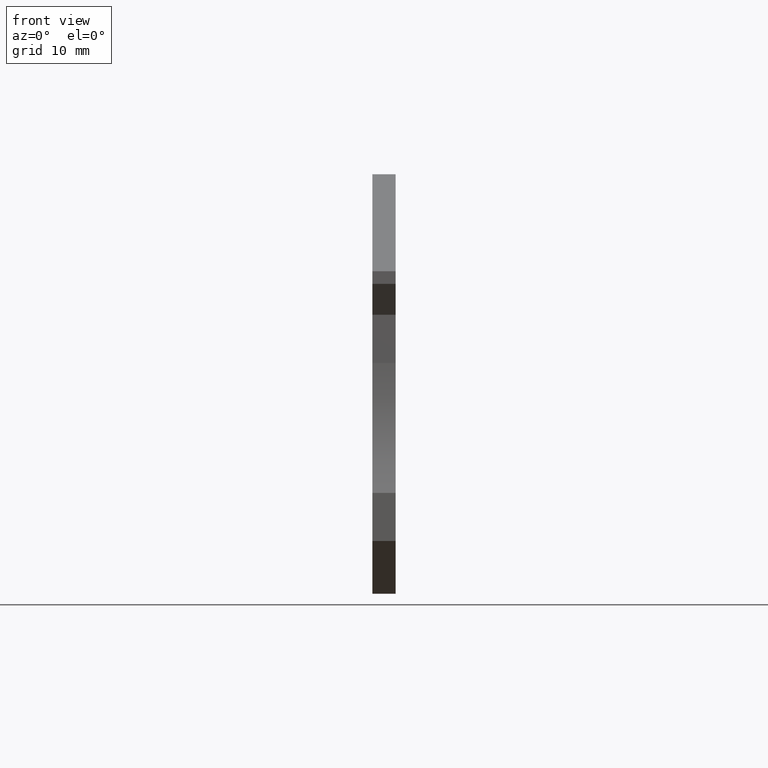
[diagram: clean part render]
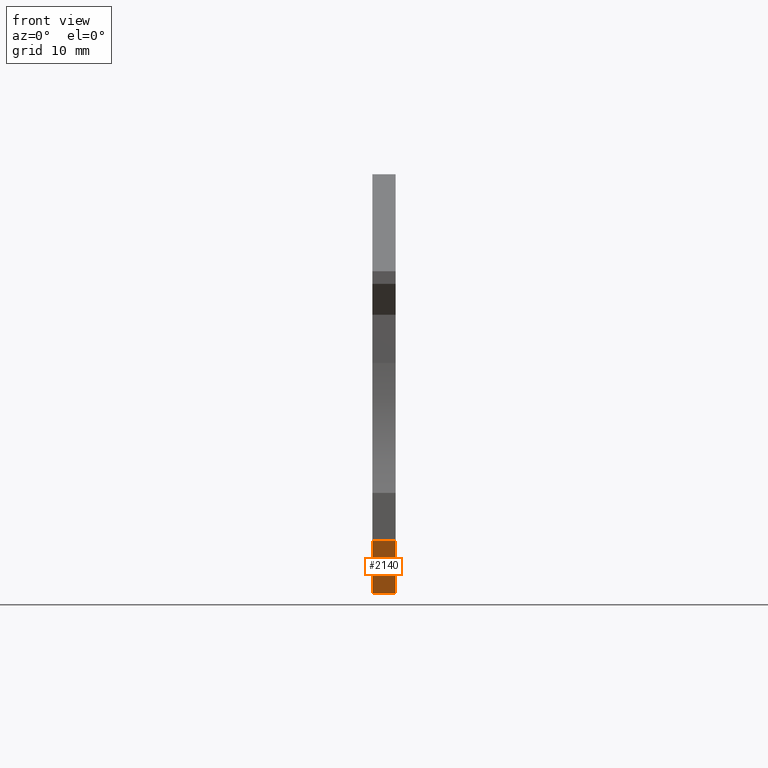
[diagram: same view with one face highlighted and labeled with its STEP entity id]
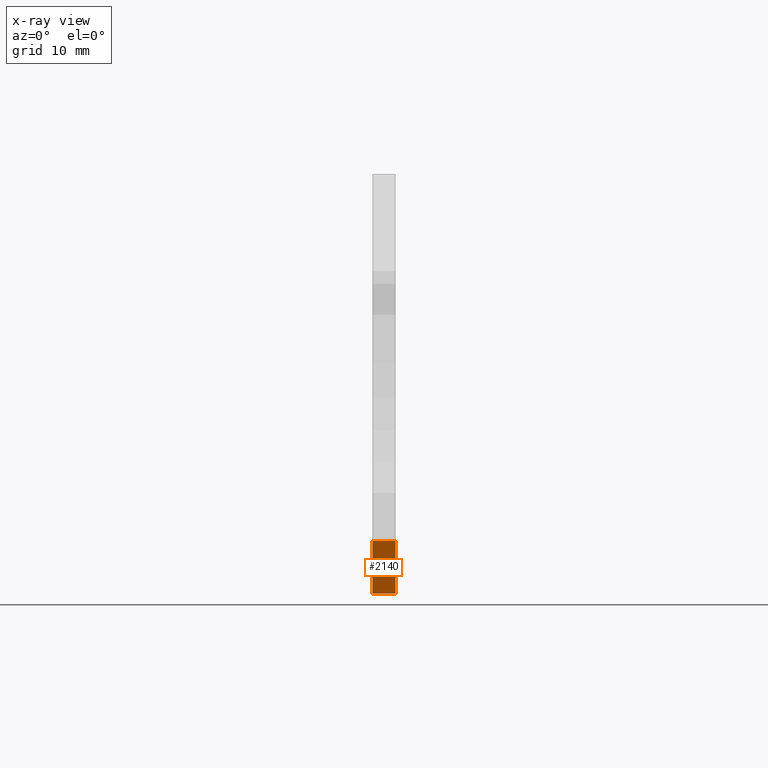
[diagram: x-ray of the same camera — body ghosted, the highlighted face saturated]
A machine part, front view. The second image highlights one B-rep face of the part: STEP entity #2140.
The next image is the same camera in x-ray: the body ghosted, the highlighted face saturated — about 0% of this face is hidden behind the body in this view.
In plain terms, the highlighted planar face has unit normal (0, -0.5, -0.866).
Its self-contained STEP definition (entity closure, byte-faithful):
#60=CARTESIAN_POINT('',(47.920285,-77.4852539852205,
-6.07934488528757E-13));
#70=DIRECTION('',(-0.866025403784439,0.5,5.27355936696949E-15));
#80=VECTOR('',#70,1.);
#90=LINE('',#60,#80);
#100=CARTESIAN_POINT('',(14.603847801119,-58.2500000000073,
-4.05057980869241E-13));
#110=VERTEX_POINT('',#100);
#120=CARTESIAN_POINT('',(5.92968082605108,-53.2419673619561,
-3.51789846203769E-13));
#130=VERTEX_POINT('',#120);
#140=EDGE_CURVE('',#110,#130,#90,.T.);
#1840=CARTESIAN_POINT('',(5.9713986625242,-53.2660531660738,
2.19999999999998));
#1850=DIRECTION('',(-0.5,-0.866025403784439,-0.));
#1860=DIRECTION('',(-0.866025403784439,0.5,0.));
#1870=AXIS2_PLACEMENT_3D('',#1840,#1850,#1860);
#1880=PLANE('',#1870);
#1890=CARTESIAN_POINT('',(47.920285,-77.4852539852205,2.19999999999998))
;
#1900=DIRECTION('',(-0.866025403784439,0.5,0.));
#1910=VECTOR('',#1900,1.);
#1920=LINE('',#1890,#1910);
#1930=CARTESIAN_POINT('',(14.603847801119,-58.2500000000073,
2.19999999999998));
#1940=VERTEX_POINT('',#1930);
#1950=CARTESIAN_POINT('',(5.92968082605108,-53.2419673619561,
2.19999999999998));
#1960=VERTEX_POINT('',#1950);
#1970=EDGE_CURVE('',#1940,#1960,#1920,.T.);
#1980=ORIENTED_EDGE('',*,*,#1970,.T.);
#1990=CARTESIAN_POINT('',(14.603847801119,-58.2500000000073,
-2.8421709430404E-14));
#2000=DIRECTION('',(0.,0.,-1.));
#2010=VECTOR('',#2000,1.);
#2020=LINE('',#1990,#2010);
#2030=EDGE_CURVE('',#1940,#110,#2020,.T.);
#2040=ORIENTED_EDGE('',*,*,#2030,.F.);
#2050=ORIENTED_EDGE('',*,*,#140,.F.);
#2060=CARTESIAN_POINT('',(5.92968082605108,-53.2419673619561,
-2.8421709430404E-14));
#2070=DIRECTION('',(0.,0.,1.));
#2080=VECTOR('',#2070,1.);
#2090=LINE('',#2060,#2080);
#2100=EDGE_CURVE('',#130,#1960,#2090,.T.);
#2110=ORIENTED_EDGE('',*,*,#2100,.F.);
#2120=EDGE_LOOP('',(#2110,#2050,#2040,#1980));
#2130=FACE_OUTER_BOUND('',#2120,.T.);
#2140=ADVANCED_FACE('',(#2130),#1880,.T.);